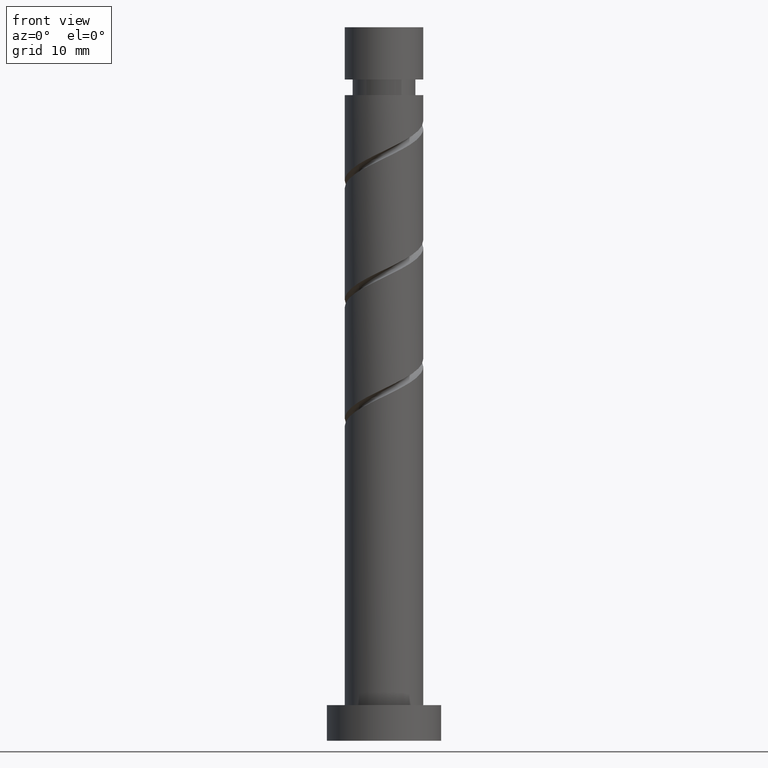
[diagram: clean part render]
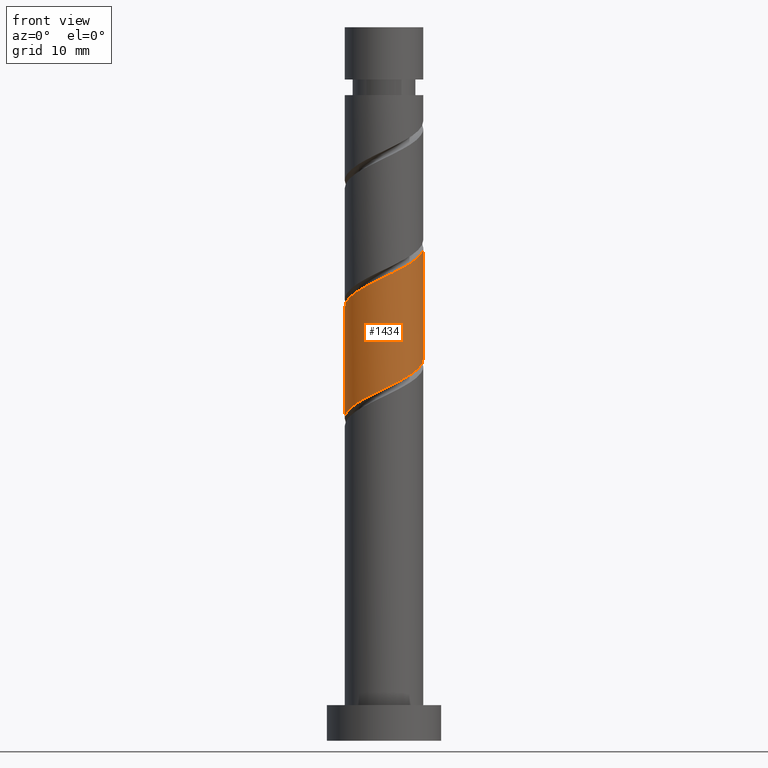
[diagram: same view with one face highlighted and labeled with its STEP entity id]
A machine part, front view. The second image highlights one B-rep face of the part: STEP entity #1434.
In plain terms, the highlighted cylindrical surface (partial cylindrical patch) has radius 5.5 mm, axis along (-0, -0, -1).
Its self-contained STEP definition (entity closure, byte-faithful):
#23 =( BOUNDED_CURVE ( )  B_SPLINE_CURVE ( 2, ( #1410, #270, #485, #377, #1175, #1184, #719, #386, #838, #606, #1425, #1401, #156, #623, #394, #1046, #613, #930, #503, #260, #1151 ),
 .UNSPECIFIED., .F., .T. ) 
 B_SPLINE_CURVE_WITH_KNOTS ( ( 3, 2, 2, 2, 2, 2, 2, 2, 2, 2, 3 ),
 ( 0.3045248053855290626, 0.3055555555555555802, 0.3194444444444444198, 0.3333333333333333703, 0.3472222222222222099, 0.3611111111111111605, 0.3750000000000000000, 0.3888888888888888395, 0.4027777777777777901, 0.4166666666666666297, 0.4295248053855290626 ),
 .UNSPECIFIED. ) 
 CURVE ( )  GEOMETRIC_REPRESENTATION_ITEM ( )  RATIONAL_B_SPLINE_CURVE ( ( 0.9071930855141273620, 0.9080659294509749735, 0.9090909090909150558, 0.8952797754656496299, 0.9090909090909150558, 0.8952797754656496299, 0.9090909090909150558, 0.8952797754656496299, 0.9090909090909150558, 0.8952797754656496299, 0.9090909090909150558, 0.8952797754656496299, 0.9090909090909150558, 0.8952797754656496299, 0.9090909090909150558, 0.8952797754656496299, 0.9090909090909150558, 0.8952797754656496299, 0.9090909090909150558, 0.8963047551055897122, 0.9071930855141273620 ) ) 
 REPRESENTATION_ITEM ( '' )  );
#74 = CARTESIAN_POINT ( 'NONE',  ( -5.215120016806764625, -1.747147163321222996, 46.03543248781515729 ) ) ;
#83 = VERTEX_POINT ( 'NONE', #552 ) ;
#90 = CARTESIAN_POINT ( 'NONE',  ( -4.303050273096039824, -3.425457392408798984, 46.96135841374107400 ) ) ;
#98 = EDGE_CURVE ( 'NONE', #1427, #1179, #109, .T. ) ;
#109 =( BOUNDED_CURVE ( )  B_SPLINE_CURVE ( 2, ( #1333, #1464, #776, #761, #422, #673, #1350, #195, #1326, #891, #667, #1002, #995, #437, #210, #308, #90, #324, #74, #1211, #294 ),
 .UNSPECIFIED., .F., .T. ) 
 B_SPLINE_CURVE_WITH_KNOTS ( ( 3, 2, 2, 2, 2, 2, 2, 2, 2, 2, 3 ),
 ( 0.8045248053855290626, 0.8055555555555555802, 0.8194444444444444198, 0.8333333333333333703, 0.8472222222222222099, 0.8611111111111111605, 0.8750000000000000000, 0.8888888888888888395, 0.9027777777777777901, 0.9166666666666666297, 0.9295248053855290626 ),
 .UNSPECIFIED. ) 
 CURVE ( )  GEOMETRIC_REPRESENTATION_ITEM ( )  RATIONAL_B_SPLINE_CURVE ( ( 0.9071930855141207006, 0.9080659294509683122, 0.9090909090909083945, 0.8952797754656429685, 0.9090909090909083945, 0.8952797754656429685, 0.9090909090909083945, 0.8952797754656429685, 0.9090909090909083945, 0.8952797754656429685, 0.9090909090909083945, 0.8952797754656429685, 0.9090909090909083945, 0.8952797754656429685, 0.9090909090909083945, 0.8952797754656429685, 0.9090909090909083945, 0.8952797754656429685, 0.9090909090909083945, 0.8963047551055830509, 0.9071930855141207006 ) ) 
 REPRESENTATION_ITEM ( '' )  );
#117 = DIRECTION ( 'NONE',  ( -0.000000000000000000, -0.000000000000000000, -1.000000000000000000 ) ) ;
#156 = CARTESIAN_POINT ( 'NONE',  ( 1.094486180817282550, -5.390000000000006786, 65.47987693225960015 ) ) ;
#172 = CARTESIAN_POINT ( 'NONE',  ( -5.500000000000000000, 0.000000000000000000, 100.0000000000000000 ) ) ;
#191 = CARTESIAN_POINT ( 'NONE',  ( -5.499999999999997335, -2.166150149299599470E-15, 45.17739848724837515 ) ) ;
#195 = CARTESIAN_POINT ( 'NONE',  ( 3.478300594132646140, -4.369431759583941144, 51.12802508040775251 ) ) ;
#210 = CARTESIAN_POINT ( 'NONE',  ( -2.871969160191505832, -4.690606905604953525, 47.88728433966701203 ) ) ;
#214 = CARTESIAN_POINT ( 'NONE',  ( 5.500000000000006217, -3.674985770535844969E-15, 69.11568871060417507 ) ) ;
#228 = CARTESIAN_POINT ( 'NONE',  ( 0.000000000000000000, 0.000000000000000000, 100.0000000000000000 ) ) ;
#229 = CARTESIAN_POINT ( 'NONE',  ( 5.500000000000000000, 6.735557395310442023E-16, 100.0000000000000000 ) ) ;
#260 = CARTESIAN_POINT ( 'NONE',  ( 5.500000000000009770, -0.8967990450125169488, 68.68576919823856031 ) ) ;
#265 = EDGE_LOOP ( 'NONE', ( #708, #974, #580, #1172 ) ) ;
#270 = CARTESIAN_POINT ( 'NONE',  ( -5.500000000000006217, -0.07095920882611397862, 60.81637275120319686 ) ) ;
#294 = CARTESIAN_POINT ( 'NONE',  ( -5.499999999999996447, -2.166150149299599470E-15, 45.17739848724837515 ) ) ;
#308 = CARTESIAN_POINT ( 'NONE',  ( -3.699049713547103657, -4.184201254900561828, 47.42432137670405012 ) ) ;
#324 = CARTESIAN_POINT ( 'NONE',  ( -4.907050832644973326, -2.666713529917040582, 46.49839545077811209 ) ) ;
#335 = CARTESIAN_POINT ( 'NONE',  ( 5.499999999999997335, 1.643286320158316640E-16, 53.51073182058169664 ) ) ;
#347 = VECTOR ( 'NONE', #939, 1000.000000000000000 ) ;
#377 = CARTESIAN_POINT ( 'NONE',  ( -5.473149438064171868, -1.111370394343062395, 61.31321026559295007 ) ) ;
#386 = CARTESIAN_POINT ( 'NONE',  ( -3.478300594132653689, -4.369431759583947361, 63.16506211744478350 ) ) ;
#394 = CARTESIAN_POINT ( 'NONE',  ( 2.871969160191508497, -4.690606905604963295, 66.40580285818555240 ) ) ;
#422 = CARTESIAN_POINT ( 'NONE',  ( 5.118058257955241608, -2.013822154058334757, 52.51691396929663114 ) ) ;
#437 = CARTESIAN_POINT ( 'NONE',  ( -2.044888606835909783, -5.197012556309350551, 48.35024730262996684 ) ) ;
#475 = EDGE_CURVE ( 'NONE', #83, #1179, #1194, .T. ) ;
#485 = CARTESIAN_POINT ( 'NONE',  ( -5.498169319516367892, -0.1418947988088256063, 60.85024730262997394 ) ) ;
#503 = CARTESIAN_POINT ( 'NONE',  ( 5.215120016806772618, -1.747147163321230545, 68.25765471003737161 ) ) ;
#552 = CARTESIAN_POINT ( 'NONE',  ( -5.500000000000006217, 3.577882487981035958E-15, 60.78235537727083226 ) ) ;
#564 = DIRECTION ( 'NONE',  ( -0.000000000000000000, -0.000000000000000000, -1.000000000000000000 ) ) ;
#580 = ORIENTED_EDGE ( 'NONE', *, *, #475, .T. ) ;
#606 = CARTESIAN_POINT ( 'NONE',  ( -1.774099724517064436, -5.295571649243630219, 64.09098804337070021 ) ) ;
#613 = CARTESIAN_POINT ( 'NONE',  ( 4.303050273096044265, -3.425457392408806978, 67.33172878411143358 ) ) ;
#623 = CARTESIAN_POINT ( 'NONE',  ( 2.044888606835909339, -5.197012556309358544, 65.94283989522256206 ) ) ;
#667 = CARTESIAN_POINT ( 'NONE',  ( 0.8150079848592020060, -5.439279546467135518, 49.73913619151885968 ) ) ;
#673 = CARTESIAN_POINT ( 'NONE',  ( 4.762967077846315789, -2.916273913773612225, 52.05395100633367633 ) ) ;
#708 = ORIENTED_EDGE ( 'NONE', *, *, #992, .F. ) ;
#719 = CARTESIAN_POINT ( 'NONE',  ( -4.120633835989489846, -3.642852836678778683, 62.70209915448182869 ) ) ;
#761 = CARTESIAN_POINT ( 'NONE',  ( 5.473149438064164762, -1.111370394343063062, 52.97987693225960726 ) ) ;
#776 = CARTESIAN_POINT ( 'NONE',  ( 5.498169319516357234, -0.1418947988088286039, 53.44283989522256917 ) ) ;
#782 = VECTOR ( 'NONE', #564, 1000.000000000000000 ) ;
#794 = DIRECTION ( 'NONE',  ( -1.000000000000000000, 0.000000000000000000, 0.000000000000000000 ) ) ;
#802 = LINE ( 'NONE', #229, #782 ) ;
#838 = CARTESIAN_POINT ( 'NONE',  ( -2.626200159324859840, -4.832501704413787458, 63.62802508040775251 ) ) ;
#891 = CARTESIAN_POINT ( 'NONE',  ( 1.774099724517059995, -5.295571649243623114, 50.20209915448182869 ) ) ;
#930 = CARTESIAN_POINT ( 'NONE',  ( 4.907050832644979543, -2.666713529917046355, 67.79469174707440970 ) ) ;
#939 = DIRECTION ( 'NONE',  ( -0.000000000000000000, -0.000000000000000000, -1.000000000000000000 ) ) ;
#959 = VERTEX_POINT ( 'NONE', #214 ) ;
#974 = ORIENTED_EDGE ( 'NONE', *, *, #1093, .F. ) ;
#992 = EDGE_CURVE ( 'NONE', #959, #1427, #802, .T. ) ;
#995 = CARTESIAN_POINT ( 'NONE',  ( -1.094486180817282772, -5.389999999999997904, 48.81321026559292875 ) ) ;
#1002 = CARTESIAN_POINT ( 'NONE',  ( -0.1440837547986581757, -5.582987443690648810, 49.27617322855590487 ) ) ;
#1046 = CARTESIAN_POINT ( 'NONE',  ( 3.699049713547106766, -4.184201254900568934, 66.86876582114848588 ) ) ;
#1093 = EDGE_CURVE ( 'NONE', #83, #959, #23, .T. ) ;
#1135 = FACE_OUTER_BOUND ( 'NONE', #265, .T. ) ;
#1151 = CARTESIAN_POINT ( 'NONE',  ( 5.500000000000006217, -3.674985770535844969E-15, 69.11568871060417507 ) ) ;
#1172 = ORIENTED_EDGE ( 'NONE', *, *, #98, .F. ) ;
#1175 = CARTESIAN_POINT ( 'NONE',  ( -5.118058257955248713, -2.013822154058337421, 61.77617322855589066 ) ) ;
#1179 = VERTEX_POINT ( 'NONE', #191 ) ;
#1184 = CARTESIAN_POINT ( 'NONE',  ( -4.762967077846325559, -2.916273913773612225, 62.23913619151884546 ) ) ;
#1194 = LINE ( 'NONE', #172, #347 ) ;
#1211 = CARTESIAN_POINT ( 'NONE',  ( -5.500000000000000000, -0.8967990450125105095, 45.60731799961398281 ) ) ;
#1326 = CARTESIAN_POINT ( 'NONE',  ( 2.626200159324853622, -4.832501704413781241, 50.66506211744478350 ) ) ;
#1333 = CARTESIAN_POINT ( 'NONE',  ( 5.499999999999996447, 1.643286320158316887E-16, 53.51073182058169664 ) ) ;
#1350 = CARTESIAN_POINT ( 'NONE',  ( 4.120633835989480076, -3.642852836678776463, 51.59098804337071442 ) ) ;
#1379 = AXIS2_PLACEMENT_3D ( 'NONE', #228, #117, #794 ) ;
#1401 = CARTESIAN_POINT ( 'NONE',  ( 0.1440837547986535683, -5.582987443690659468, 65.01691396929663824 ) ) ;
#1410 = CARTESIAN_POINT ( 'NONE',  ( -5.500000000000006217, 3.577882487981035958E-15, 60.78235537727083226 ) ) ;
#1425 = CARTESIAN_POINT ( 'NONE',  ( -0.8150079848592056697, -5.439279546467145288, 64.55395100633367633 ) ) ;
#1427 = VERTEX_POINT ( 'NONE', #335 ) ;
#1434 = ADVANCED_FACE ( 'NONE', ( #1135 ), #1475, .T. ) ;
#1464 = CARTESIAN_POINT ( 'NONE',  ( 5.499999999999998224, -0.07095920882611717051, 53.47671444664934626 ) ) ;
#1475 = CYLINDRICAL_SURFACE ( 'NONE', #1379, 5.500000000000000000 ) ;